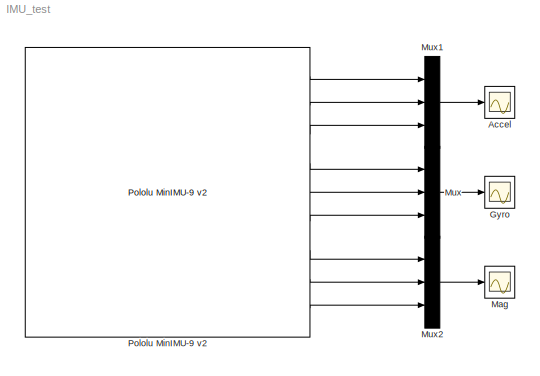
MODEL IMU_test
KIND model
BLOCK [Scope] Accel
  Floating = off
  NumInputPorts = 1
  Ports = [1]
  SID = 11
  ScopeSpecificationString = Simulink.scopes.TimeScopeBlockCfg('CurrentConfiguration', extmgr.ConfigurationSet(extmgr.Configuration('Core','General UI',true),extmgr.Configuration('Core','Source UI',true),extmgr.Configuration('Sources','WiredSimulink',true,'DataLoggingVariableName','ScopeData1','DataLoggingSaveFormat','StructureWithTime','DataLoggingLimitDataPoints',true,'DataLoggingDecimation','1','DataLoggingDecimateData',tr...<+1653ch>
BLOCK [Scope] Gyro
  Floating = off
  NumInputPorts = 1
  Ports = [1]
  SID = 9
  ScopeSpecificationString = Simulink.scopes.TimeScopeBlockCfg('CurrentConfiguration', extmgr.ConfigurationSet(extmgr.Configuration('Core','General UI',true),extmgr.Configuration('Core','Source UI',true),extmgr.Configuration('Sources','WiredSimulink',true,'DataLoggingSaveFormat','StructureWithTime','DataLoggingLimitDataPoints',true,'DataLoggingDecimation','1','DataLoggingDecimateData',true),extmgr.Configuration('Visuals','Tim...<+1610ch>
BLOCK [Scope] Mag
  Floating = off
  NumInputPorts = 1
  Ports = [1]
  SID = 13
  ScopeSpecificationString = Simulink.scopes.TimeScopeBlockCfg('CurrentConfiguration', extmgr.ConfigurationSet(extmgr.Configuration('Core','General UI',true),extmgr.Configuration('Core','Source UI',true),extmgr.Configuration('Sources','WiredSimulink',true,'DataLoggingVariableName','ScopeData2','DataLoggingSaveFormat','StructureWithTime','DataLoggingLimitDataPoints',true,'DataLoggingDecimation','1','DataLoggingDecimateData',tr...<+1657ch>
BLOCK [Mux] Mux
  DisplayOption = bar
  Inputs = 3
  Ports = [3, 1]
  SID = 8
BLOCK [Mux] Mux1
  DisplayOption = bar
  Inputs = 3
  Ports = [3, 1]
  SID = 10
BLOCK [Mux] Mux2
  DisplayOption = bar
  Inputs = 3
  Ports = [3, 1]
  SID = 12
BLOCK [Reference] Pololu MinIMU-9 v2  REF=rpi_blkst/Pololu MinIMU-9 v2  (lib defined in mdl_5f9edbe601a8, slx_830431f926a7)
  Ports = [0, 9]
  SID = 14
  SourceBlock = rpi_blkst/Pololu MinIMU-9 v2
  SourceProductName = RPI Blockset
  SourceType = IMU
  rpi_mask_Ts = 0.01
LINE Mux1:1 -> Accel:1
LINE Mux2:1 -> Mag:1
LINE Mux:1 -> Gyro:1
LINE Pololu MinIMU-9 v2:1 -> Mux1:1
LINE Pololu MinIMU-9 v2:2 -> Mux1:2
LINE Pololu MinIMU-9 v2:3 -> Mux1:3
LINE Pololu MinIMU-9 v2:4 -> Mux:1
LINE Pololu MinIMU-9 v2:5 -> Mux:2
LINE Pololu MinIMU-9 v2:6 -> Mux:3
LINE Pololu MinIMU-9 v2:7 -> Mux2:1
LINE Pololu MinIMU-9 v2:8 -> Mux2:2
LINE Pololu MinIMU-9 v2:9 -> Mux2:3
